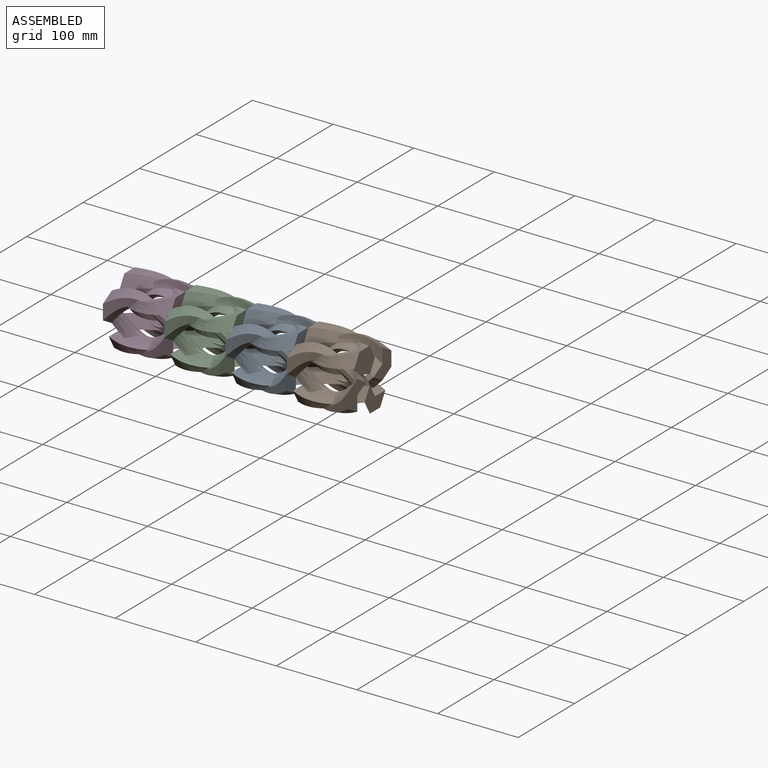
[diagram: assembled view]
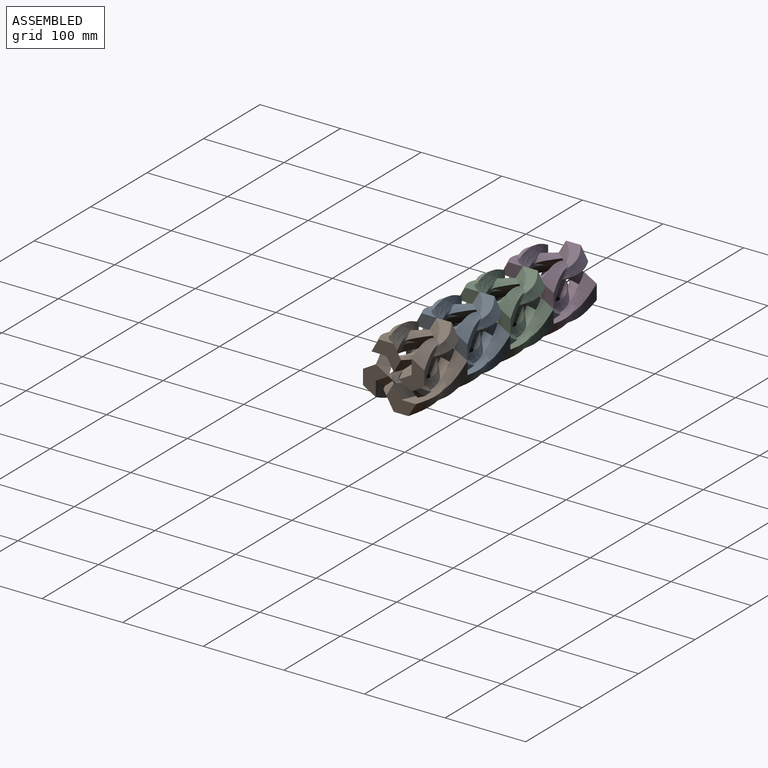
[diagram: assembled view, second angle]
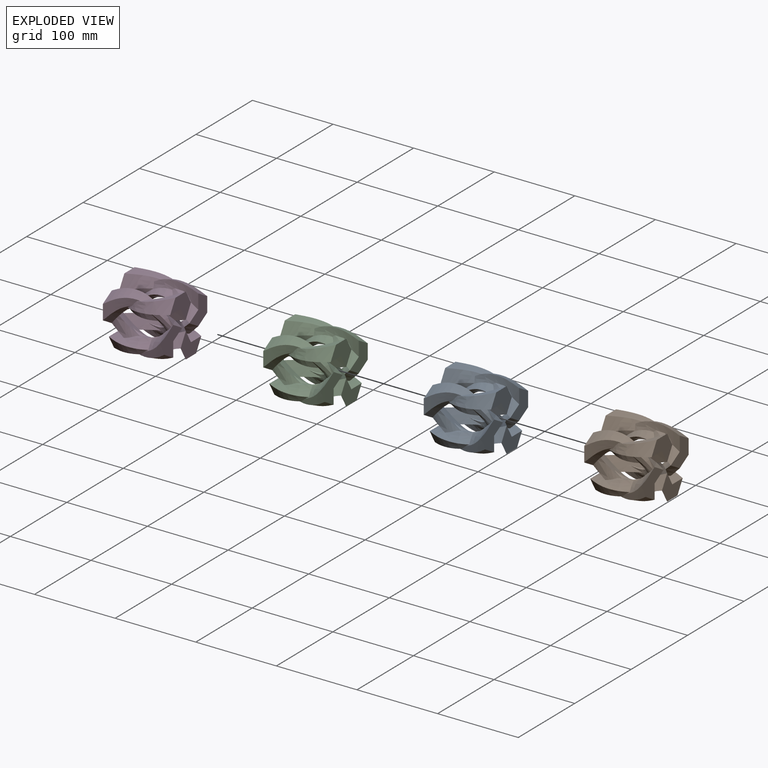
[diagram: exploded view]
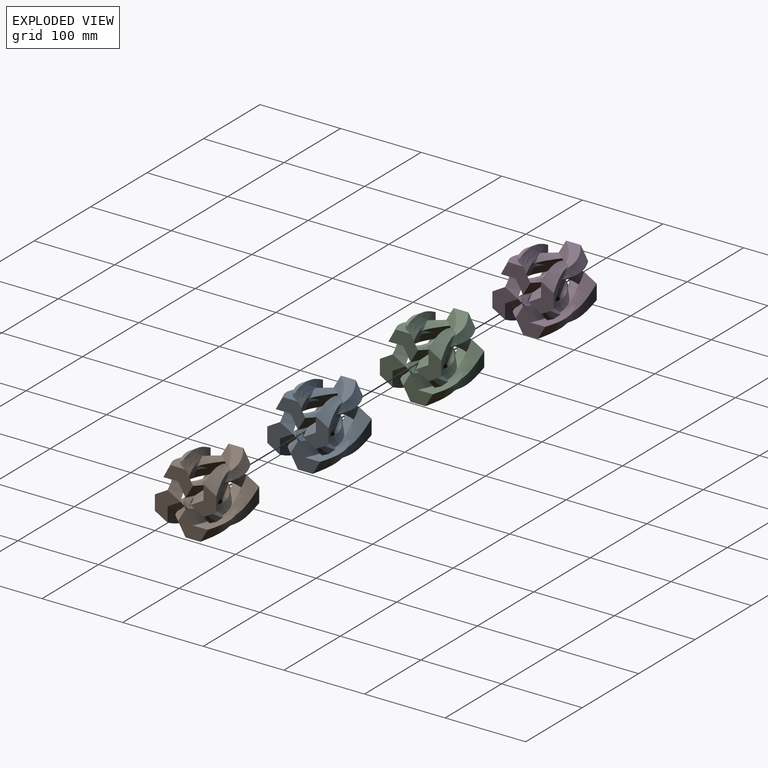
[diagram: exploded view, second angle]
ASSEMBLY  parts=4 mates=3
PART A: 104 faces, bbox 76.2x76.2x76.2 mm
  f0: bspline ~37.79x31.47mm, area 79.4mm2, adj f1,f7,f11,f26
  f1: bspline ~43.85x30.96mm, area 124.2mm2, adj f0,f2,f11,f26
  f2: bspline ~46.19x27.03mm, area 138.4mm2, adj f1,f3,f11,f26,f98
  f3: bspline ~46.19x28.27mm, area 66.5mm2, adj f2,f5,f25,f98
  f4: bspline ~46.36x28.27mm, area 241mm2, adj f6,f16,f25,f26,f98
  f5: bspline ~41.07x35.03mm, area 171.9mm2, adj f3,f7,f25,f98
  f6: bspline ~36.08x25.87mm, area 218.9mm2, adj f4,f12,f19,f98,f99,f100
  f7: bspline ~30.23x27.84mm, area 241mm2, adj f0,f5,f13,f26,f98
  f8: bspline ~72.09x29.27mm, area 546mm2, adj f9,f13,f20,f30,f31,f32,f34,f37
  f9: bspline ~64.93x22.03mm, area 624.9mm2, adj f8,f10,f13,f45,f46
  f10: bspline ~62.79x31.81mm, area 365.3mm2, adj f9,f11,f13,f44,f45
  f11: bspline ~43.6x35.89mm, area 525.3mm2, adj f0,f1,f2,f10,f13,f25,f44,f49
  f12: plane 36.66x31.75mm, normal (-1,0,0), area 582mm2, adj f6,f14,f15,f16,f19,f20,f21,f22
  f13: plane 36.66x31.75mm, normal (1,0,0), area 582mm2, adj f7,f8,f9,f10,f11,f20
  f14: bspline ~64.68x19.45mm, area 633.7mm2, adj f12,f15,f19,f28,f29
  f15: bspline ~62.91x30.96mm, area 453.6mm2, adj f12,f14,f16,f27,f28
  f16: bspline ~44.85x31.61mm, area 490.4mm2, adj f4,f12,f15,f24,f26,f27
  f17: bspline ~66.51x23.73mm, area 54.1mm2, adj f18,f103
  f18: bspline ~71.92x35.03mm, area 233.1mm2, adj f17,f19,f102,f103
  f19: bspline ~76.2x37.11mm, area 721.8mm2, adj f6,f12,f14,f18,f29,f100,f101,f102
  f20: bspline ~76.2x26.72mm, area 716.9mm2, adj f8,f12,f13,f21,f25,f30,f33,f34
  f21: bspline ~27.99x25.07mm, area 75.5mm2, adj f12,f20,f22,f36
  f22: bspline ~25.23x23.02mm, area 96mm2, adj f12,f21,f23,f36,f49
  f23: bspline ~32.6x20.73mm, area 62.4mm2, adj f12,f22,f24,f49
  f24: bspline ~57.83x35.89mm, area 341.4mm2, adj f16,f23,f25,f48,f49
  f25: bspline ~76.2x31.62mm, area 1134.8mm2, adj f3,f4,f5,f11,f20,f24,f47,f48
  f26: bspline ~72.09x29.27mm, area 546mm2, adj f0,f1,f2,f4,f7,f16,f27,f91
  f27: bspline ~64.93x22.03mm, area 624.9mm2, adj f15,f16,f26,f28,f91
  f28: bspline ~62.79x31.81mm, area 365.3mm2, adj f14,f15,f27,f29,f91
  f29: bspline ~43.6x35.89mm, area 525.3mm2, adj f14,f19,f28,f82,f83,f84,f91,f103
  f30: bspline ~46.19x27.03mm, area 138.4mm2, adj f8,f20,f31,f33,f41
  f31: bspline ~43.85x30.96mm, area 124.2mm2, adj f8,f30,f32,f41
  f32: bspline ~37.79x31.47mm, area 79.4mm2, adj f8,f31,f37,f41
  f33: bspline ~46.19x28.27mm, area 66.5mm2, adj f20,f30,f35,f55
  f34: bspline ~46.36x28.27mm, area 241mm2, adj f8,f20,f36,f46,f55
  f35: bspline ~41.07x35.03mm, area 171.9mm2, adj f20,f33,f37,f55
  f36: bspline ~36.08x25.87mm, area 218.9mm2, adj f20,f21,f22,f34,f42,f49
  f37: bspline ~30.23x27.84mm, area 241mm2, adj f8,f20,f32,f35,f43
  f38: bspline ~72.09x29.27mm, area 546mm2, adj f39,f43,f50,f56,f57,f58,f60,f63
  f39: bspline ~64.93x22.03mm, area 624.9mm2, adj f38,f40,f43,f71,f72
  f40: bspline ~62.79x31.81mm, area 365.3mm2, adj f39,f41,f43,f70,f71
  f41: bspline ~43.6x35.89mm, area 525.3mm2, adj f30,f31,f32,f40,f43,f55,f70,f75
  f42: plane 36.66x31.75mm, normal (-1,0,0), area 582mm2, adj f36,f44,f45,f46,f49,f50,f51,f52
  f43: plane 36.66x31.75mm, normal (1,0,0), area 582mm2, adj f37,f38,f39,f40,f41,f50
  f44: bspline ~64.68x19.45mm, area 633.7mm2, adj f10,f11,f42,f45,f49
  f45: bspline ~62.91x30.96mm, area 453.6mm2, adj f9,f10,f42,f44,f46
  f46: bspline ~44.85x31.61mm, area 490.4mm2, adj f8,f9,f34,f42,f45,f54
  f47: bspline ~66.51x23.73mm, area 54.1mm2, adj f25,f48
  f48: bspline ~71.92x35.03mm, area 233.1mm2, adj f24,f25,f47,f49
  f49: bspline ~76.2x37.11mm, area 721.8mm2, adj f11,f22,f23,f24,f25,f36,f42,f44
  f50: bspline ~76.2x26.72mm, area 716.9mm2, adj f38,f42,f43,f51,f55,f56,f59,f60
  f51: bspline ~27.99x25.07mm, area 75.5mm2, adj f42,f50,f52,f62
  f52: bspline ~25.23x23.02mm, area 96mm2, adj f42,f51,f53,f62,f75
  f53: bspline ~32.6x20.73mm, area 62.4mm2, adj f42,f52,f54,f75
  f54: bspline ~57.83x35.89mm, area 341.4mm2, adj f46,f53,f55,f74,f75
  f55: bspline ~76.2x31.62mm, area 1134.8mm2, adj f33,f34,f35,f41,f50,f54,f73,f74
  f56: bspline ~46.19x27.03mm, area 138.4mm2, adj f38,f50,f57,f59,f67
  f57: bspline ~43.85x30.96mm, area 124.2mm2, adj f38,f56,f58,f67
  f58: bspline ~37.79x31.47mm, area 79.4mm2, adj f38,f57,f63,f67
  f59: bspline ~46.19x28.27mm, area 66.5mm2, adj f50,f56,f61,f81
  f60: bspline ~46.36x28.27mm, area 241mm2, adj f38,f50,f62,f72,f81
  f61: bspline ~41.07x35.03mm, area 171.9mm2, adj f50,f59,f63,f81
  f62: bspline ~36.08x25.87mm, area 218.9mm2, adj f50,f51,f52,f60,f68,f75
  f63: bspline ~30.23x27.84mm, area 241mm2, adj f38,f50,f58,f61,f69
  f64: bspline ~72.09x29.27mm, area 546mm2, adj f65,f69,f76,f82,f83,f84,f86,f89
  f65: bspline ~64.93x22.03mm, area 624.9mm2, adj f64,f66,f69,f93,f94
  f66: bspline ~62.79x31.81mm, area 365.3mm2, adj f65,f67,f69,f92,f93
  f67: bspline ~43.6x35.89mm, area 525.3mm2, adj f56,f57,f58,f66,f69,f81,f92,f97
  f68: plane 36.66x31.75mm, normal (-1,0,0), area 582mm2, adj f62,f70,f71,f72,f75,f76,f77,f78
  f69: plane 36.66x31.75mm, normal (1,0,0), area 582mm2, adj f63,f64,f65,f66,f67,f76
  f70: bspline ~64.68x19.45mm, area 633.7mm2, adj f40,f41,f68,f71,f75
  f71: bspline ~62.91x30.96mm, area 453.6mm2, adj f39,f40,f68,f70,f72
  f72: bspline ~44.85x31.61mm, area 490.4mm2, adj f38,f39,f60,f68,f71,f80
  f73: bspline ~66.51x23.73mm, area 54.1mm2, adj f55,f74
  f74: bspline ~71.92x35.03mm, area 233.1mm2, adj f54,f55,f73,f75
  f75: bspline ~76.2x37.11mm, area 721.8mm2, adj f41,f52,f53,f54,f55,f62,f68,f70
  f76: bspline ~76.2x26.72mm, area 716.9mm2, adj f64,f68,f69,f77,f81,f82,f85,f86
  f77: bspline ~27.99x25.07mm, area 75.5mm2, adj f68,f76,f78,f88
  f78: bspline ~25.23x23.02mm, area 96mm2, adj f68,f77,f79,f88,f97
  f79: bspline ~32.6x20.73mm, area 62.4mm2, adj f68,f78,f80,f97
  f80: bspline ~57.83x35.89mm, area 341.4mm2, adj f72,f79,f81,f96,f97
  f81: bspline ~76.2x31.62mm, area 1134.8mm2, adj f59,f60,f61,f67,f76,f80,f95,f96
  f82: bspline ~46.19x27.03mm, area 138.4mm2, adj f29,f64,f76,f83,f85
  f83: bspline ~43.85x30.96mm, area 124.2mm2, adj f29,f64,f82,f84
  f84: bspline ~37.79x31.47mm, area 79.4mm2, adj f29,f64,f83,f89
  f85: bspline ~46.19x28.27mm, area 66.5mm2, adj f76,f82,f87,f103
  f86: bspline ~46.36x28.27mm, area 241mm2, adj f64,f76,f88,f94,f103
  f87: bspline ~41.07x35.03mm, area 171.9mm2, adj f76,f85,f89,f103
  f88: bspline ~36.08x25.87mm, area 218.9mm2, adj f76,f77,f78,f86,f90,f97
  f89: bspline ~30.23x27.84mm, area 241mm2, adj f64,f76,f84,f87,f91
  f90: plane 36.66x31.75mm, normal (-1,0,0), area 582mm2, adj f88,f92,f93,f94,f97,f98,f99,f100
  f91: plane 36.66x31.75mm, normal (1,0,0), area 582mm2, adj f26,f27,f28,f29,f89,f98
  f92: bspline ~64.68x19.45mm, area 633.7mm2, adj f66,f67,f90,f93,f97
  f93: bspline ~62.91x30.96mm, area 453.6mm2, adj f65,f66,f90,f92,f94
  f94: bspline ~44.85x31.61mm, area 490.4mm2, adj f64,f65,f86,f90,f93,f102
  f95: bspline ~66.51x23.73mm, area 54.1mm2, adj f81,f96
  f96: bspline ~71.92x35.03mm, area 233.1mm2, adj f80,f81,f95,f97
  f97: bspline ~76.2x37.11mm, area 721.8mm2, adj f67,f78,f79,f80,f81,f88,f90,f92
  f98: bspline ~76.2x26.72mm, area 716.9mm2, adj f2,f3,f4,f5,f6,f7,f26,f90
  f99: bspline ~27.99x25.07mm, area 75.5mm2, adj f6,f90,f98,f100
  f100: bspline ~25.23x23.02mm, area 96mm2, adj f6,f19,f90,f99,f101
  f101: bspline ~32.6x20.73mm, area 62.4mm2, adj f19,f90,f100,f102
  f102: bspline ~57.83x35.89mm, area 341.4mm2, adj f18,f19,f94,f101,f103
  f103: bspline ~76.2x31.62mm, area 1134.8mm2, adj f17,f18,f19,f29,f85,f86,f87,f98
PART B: same geometry as A
PART C: same geometry as A
PART D: same geometry as A
PLACE A t=(84.2,103.66,6.52)mm
PLACE B t=(160.4,103.69,6.43)mm
PLACE C t=(8,103.95,6.37)mm
PLACE D t=(-68.2,104.03,5.88)mm
MATE planar A.f42 <-> C.f13  axis (-1,0,0) through (84.2,115.57,51.5)mm
MATE planar A.f43 <-> B.f42  axis (1,0,0) through (160.4,119.54,26.29)mm
MATE planar D.f13 <-> C.f12  axis (1,0,0) through (8,135.26,70.18)mm
